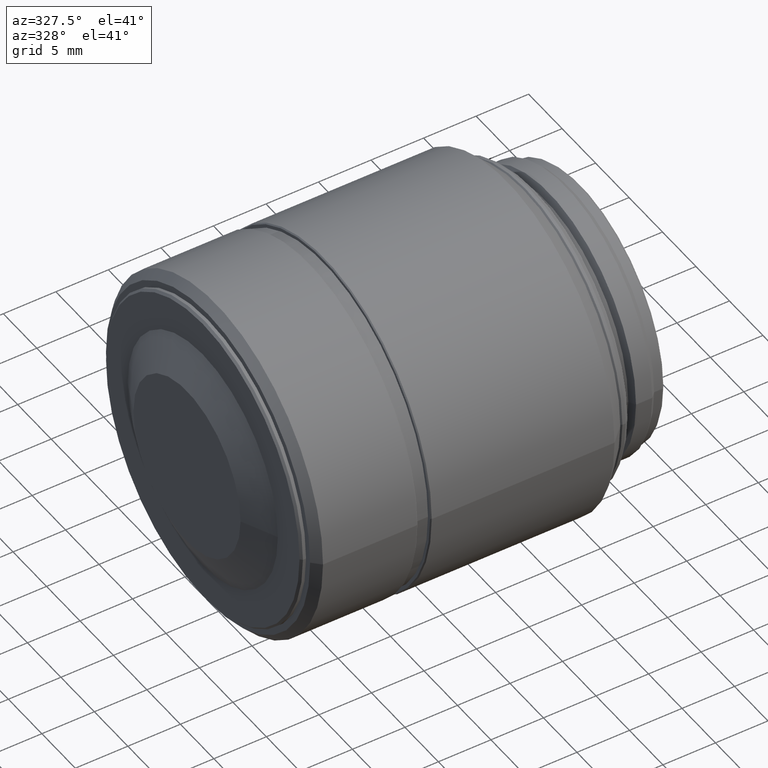
[diagram: clean part render]
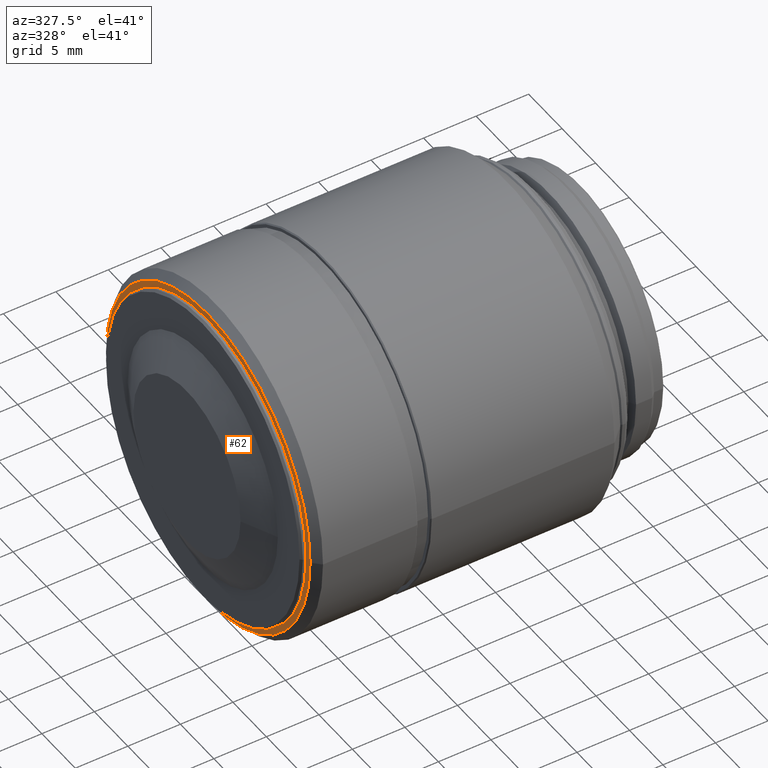
[diagram: same view with one face highlighted and labeled with its STEP entity id]
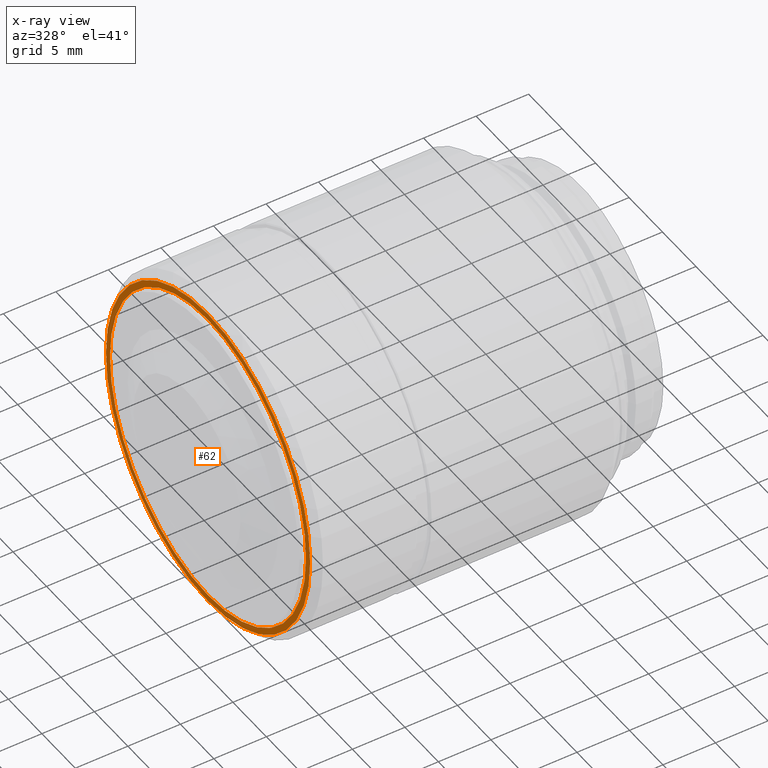
[diagram: x-ray of the same camera — body ghosted, the highlighted face saturated]
A machine part, auxiliary view. The second image highlights one B-rep face of the part: STEP entity #62.
The next image is the same camera in x-ray: the body ghosted, the highlighted face saturated — about 0% of this face is hidden behind the body in this view.
In plain terms, the highlighted planar face has unit normal (-1, 0, 0).
Its self-contained STEP definition (entity closure, byte-faithful):
#55 = CARTESIAN_POINT ( 'NONE',  ( -7.000000000000000000, -14.65000000000000036, 0.000000000000000000 ) ) ;
#62 = ADVANCED_FACE ( 'NONE', ( #463, #437 ), #812, .T. ) ;
#75 = VERTEX_POINT ( 'NONE', #327 ) ;
#174 = EDGE_CURVE ( 'NONE', #991, #261, #418, .T. ) ;
#261 = VERTEX_POINT ( 'NONE', #55 ) ;
#327 = CARTESIAN_POINT ( 'NONE',  ( -7.000000000000000000, -15.25000000000000000, 0.000000000000000000 ) ) ;
#340 = CARTESIAN_POINT ( 'NONE',  ( -7.000000000000000000, 14.65000000000000036, -1.794107560750869684E-15 ) ) ;
#381 = ORIENTED_EDGE ( 'NONE', *, *, #610, .F. ) ;
#418 = CIRCLE ( 'NONE', #595, 14.65000000000000036 ) ;
#432 = DIRECTION ( 'NONE',  ( 0.000000000000000000, 0.000000000000000000, 1.000000000000000000 ) ) ;
#437 = FACE_BOUND ( 'NONE', #1283, .T. ) ;
#438 = DIRECTION ( 'NONE',  ( 0.000000000000000000, 1.000000000000000000, 0.000000000000000000 ) ) ;
#463 = FACE_OUTER_BOUND ( 'NONE', #516, .T. ) ;
#473 = AXIS2_PLACEMENT_3D ( 'NONE', #1296, #1310, #1424 ) ;
#492 = AXIS2_PLACEMENT_3D ( 'NONE', #680, #1286, #432 ) ;
#516 = EDGE_LOOP ( 'NONE', ( #381, #1337 ) ) ;
#523 = CIRCLE ( 'NONE', #1440, 15.25000000000000000 ) ;
#595 = AXIS2_PLACEMENT_3D ( 'NONE', #929, #1268, #798 ) ;
#610 = EDGE_CURVE ( 'NONE', #75, #1383, #1301, .T. ) ;
#680 = CARTESIAN_POINT ( 'NONE',  ( -7.000000000000000000, 14.94999999999999929, 0.000000000000000000 ) ) ;
#798 = DIRECTION ( 'NONE',  ( 0.000000000000000000, 1.000000000000000000, 0.000000000000000000 ) ) ;
#812 = PLANE ( 'NONE',  #492 ) ;
#873 = DIRECTION ( 'NONE',  ( 0.000000000000000000, 1.000000000000000000, 0.000000000000000000 ) ) ;
#910 = DIRECTION ( 'NONE',  ( 1.000000000000000000, 0.000000000000000000, 0.000000000000000000 ) ) ;
#922 = DIRECTION ( 'NONE',  ( 1.000000000000000000, 0.000000000000000000, 0.000000000000000000 ) ) ;
#929 = CARTESIAN_POINT ( 'NONE',  ( -7.000000000000000000, 0.000000000000000000, 0.000000000000000000 ) ) ;
#937 = CIRCLE ( 'NONE', #473, 14.65000000000000036 ) ;
#991 = VERTEX_POINT ( 'NONE', #340 ) ;
#1029 = CARTESIAN_POINT ( 'NONE',  ( -7.000000000000000000, 0.000000000000000000, 0.000000000000000000 ) ) ;
#1064 = ORIENTED_EDGE ( 'NONE', *, *, #174, .T. ) ;
#1119 = ORIENTED_EDGE ( 'NONE', *, *, #1262, .T. ) ;
#1150 = CARTESIAN_POINT ( 'NONE',  ( -7.000000000000000000, 0.000000000000000000, 0.000000000000000000 ) ) ;
#1213 = CARTESIAN_POINT ( 'NONE',  ( -7.000000000000000000, 15.25000000000000000, -1.867586368699709826E-15 ) ) ;
#1262 = EDGE_CURVE ( 'NONE', #261, #991, #937, .T. ) ;
#1268 = DIRECTION ( 'NONE',  ( 1.000000000000000000, 0.000000000000000000, 0.000000000000000000 ) ) ;
#1278 = AXIS2_PLACEMENT_3D ( 'NONE', #1150, #922, #438 ) ;
#1283 = EDGE_LOOP ( 'NONE', ( #1119, #1064 ) ) ;
#1286 = DIRECTION ( 'NONE',  ( -1.000000000000000000, 0.000000000000000000, 0.000000000000000000 ) ) ;
#1296 = CARTESIAN_POINT ( 'NONE',  ( -7.000000000000000000, 0.000000000000000000, 0.000000000000000000 ) ) ;
#1301 = CIRCLE ( 'NONE', #1278, 15.25000000000000000 ) ;
#1310 = DIRECTION ( 'NONE',  ( 1.000000000000000000, 0.000000000000000000, 0.000000000000000000 ) ) ;
#1337 = ORIENTED_EDGE ( 'NONE', *, *, #1427, .F. ) ;
#1383 = VERTEX_POINT ( 'NONE', #1213 ) ;
#1424 = DIRECTION ( 'NONE',  ( 0.000000000000000000, 1.000000000000000000, 0.000000000000000000 ) ) ;
#1427 = EDGE_CURVE ( 'NONE', #1383, #75, #523, .T. ) ;
#1440 = AXIS2_PLACEMENT_3D ( 'NONE', #1029, #910, #873 ) ;